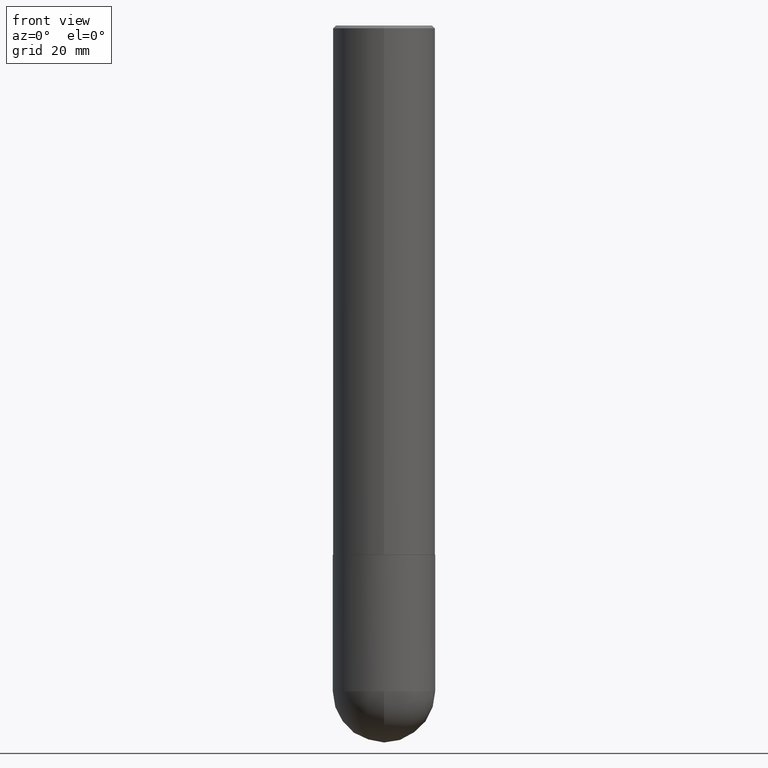
[diagram: clean part render]
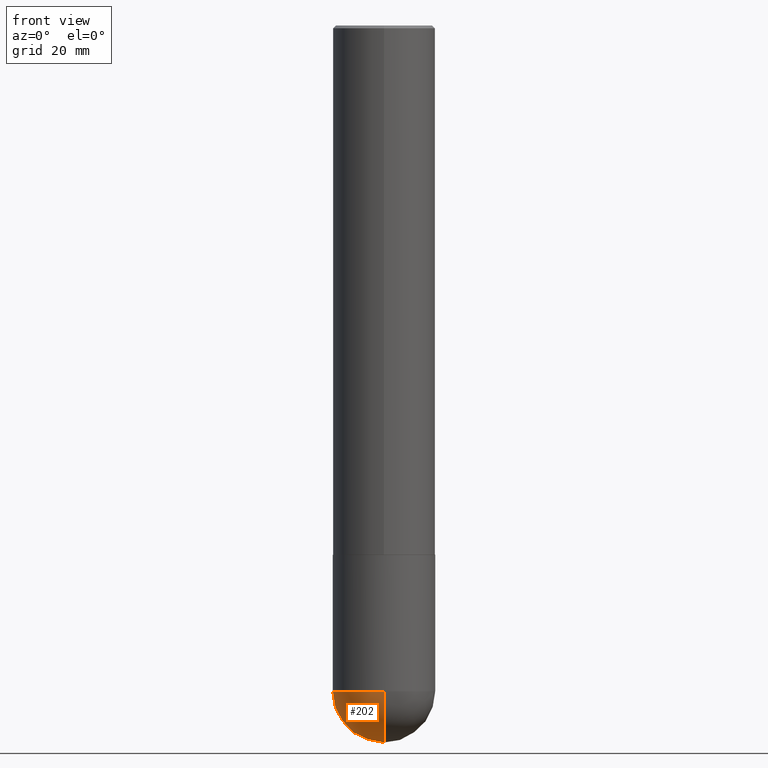
[diagram: same view with one face highlighted and labeled with its STEP entity id]
A machine part, front view. The second image highlights one B-rep face of the part: STEP entity #202.
In plain terms, the highlighted spherical surface has radius 9.525 mm.
Its self-contained STEP definition (entity closure, byte-faithful):
#1 = DIRECTION ( 'NONE',  ( -2.445468806185136597E-29, 3.491481338843145583E-15, 1.000000000000000000 ) ) ;
#11 = AXIS2_PLACEMENT_3D ( 'NONE', #103, #236, #372 ) ;
#12 = CARTESIAN_POINT ( 'NONE',  ( 1.192166043015254091E-28, -1.702097152686033664E-14, -4.875000000000000000 ) ) ;
#30 = CIRCLE ( 'NONE', #401, 0.3750000000000001110 ) ;
#44 = CARTESIAN_POINT ( 'NONE',  ( 1.252362582248019568E-28, -1.878149726958255384E-14, -5.250000000000000000 ) ) ;
#48 = EDGE_CURVE ( 'NONE', #158, #300, #252, .T. ) ;
#50 = DIRECTION ( 'NONE',  ( -1.000000000000000000, 7.105427357601001070E-15, -4.926315508542082329E-29 ) ) ;
#54 = ORIENTED_EDGE ( 'NONE', *, *, #183, .T. ) ;
#103 = CARTESIAN_POINT ( 'NONE',  ( 1.159054065223865578E-28, -1.749515389500038536E-14, -4.875000000000000000 ) ) ;
#137 = DIRECTION ( 'NONE',  ( -2.445468806185136597E-29, 3.491481338843145583E-15, 1.000000000000000000 ) ) ;
#141 = DIRECTION ( 'NONE',  ( 1.000000000000000000, -6.982962677686260400E-15, 0.000000000000000000 ) ) ;
#158 = VERTEX_POINT ( 'NONE', #376 ) ;
#167 = CIRCLE ( 'NONE', #406, 0.3750000000000001110 ) ;
#170 = FACE_OUTER_BOUND ( 'NONE', #224, .T. ) ;
#183 = EDGE_CURVE ( 'NONE', #340, #405, #30, .T. ) ;
#198 = CARTESIAN_POINT ( 'NONE',  ( -0.3750000000000001110, -1.261069559833838637E-14, -4.875000000000000000 ) ) ;
#202 = ADVANCED_FACE ( 'NONE', ( #170 ), #395, .T. ) ;
#212 = DIRECTION ( 'NONE',  ( 1.000000000000000000, -6.982962677686265922E-15, 4.883557194083112340E-29 ) ) ;
#220 = ORIENTED_EDGE ( 'NONE', *, *, #48, .F. ) ;
#224 = EDGE_LOOP ( 'NONE', ( #350, #54, #260, #220 ) ) ;
#227 = CARTESIAN_POINT ( 'NONE',  ( -2.664535259100258157E-15, -0.3750000000000173195, -4.874999999999999112 ) ) ;
#228 = CIRCLE ( 'NONE', #261, 0.3750000000000001110 ) ;
#230 = EDGE_CURVE ( 'NONE', #300, #405, #167, .T. ) ;
#236 = DIRECTION ( 'NONE',  ( -1.000000000000000000, 6.982962677686265922E-15, -4.883557194083112340E-29 ) ) ;
#241 = CARTESIAN_POINT ( 'NONE',  ( 1.159054065223865578E-28, -1.749515389500038536E-14, -4.875000000000000000 ) ) ;
#252 = CIRCLE ( 'NONE', #279, 0.3750000000000001110 ) ;
#257 = EDGE_CURVE ( 'NONE', #340, #158, #228, .T. ) ;
#260 = ORIENTED_EDGE ( 'NONE', *, *, #230, .F. ) ;
#261 = AXIS2_PLACEMENT_3D ( 'NONE', #241, #212, #274 ) ;
#274 = DIRECTION ( 'NONE',  ( 6.982962677686265922E-15, 1.000000000000000000, 0.000000000000000000 ) ) ;
#279 = AXIS2_PLACEMENT_3D ( 'NONE', #387, #1, #302 ) ;
#300 = VERTEX_POINT ( 'NONE', #198 ) ;
#302 = DIRECTION ( 'NONE',  ( 1.000000000000000000, -6.982962677686260400E-15, 0.000000000000000000 ) ) ;
#309 = CARTESIAN_POINT ( 'NONE',  ( 1.159054065223865578E-28, -1.749515389500038536E-14, -4.875000000000000000 ) ) ;
#340 = VERTEX_POINT ( 'NONE', #44 ) ;
#346 = DIRECTION ( 'NONE',  ( -7.105427357601001070E-15, -1.000000000000000000, 0.000000000000000000 ) ) ;
#350 = ORIENTED_EDGE ( 'NONE', *, *, #257, .F. ) ;
#372 = DIRECTION ( 'NONE',  ( 6.982962677686265922E-15, 1.000000000000000000, -2.913971193241879977E-15 ) ) ;
#376 = CARTESIAN_POINT ( 'NONE',  ( 2.618611004132467951E-15, 0.3749999999999829026, -4.875000000000001776 ) ) ;
#387 = CARTESIAN_POINT ( 'NONE',  ( 1.192166043015254091E-28, -1.702097152686033664E-14, -4.875000000000000000 ) ) ;
#395 = SPHERICAL_SURFACE ( 'NONE', #11, 0.3750000000000001110 ) ;
#401 = AXIS2_PLACEMENT_3D ( 'NONE', #309, #50, #346 ) ;
#405 = VERTEX_POINT ( 'NONE', #227 ) ;
#406 = AXIS2_PLACEMENT_3D ( 'NONE', #12, #137, #141 ) ;